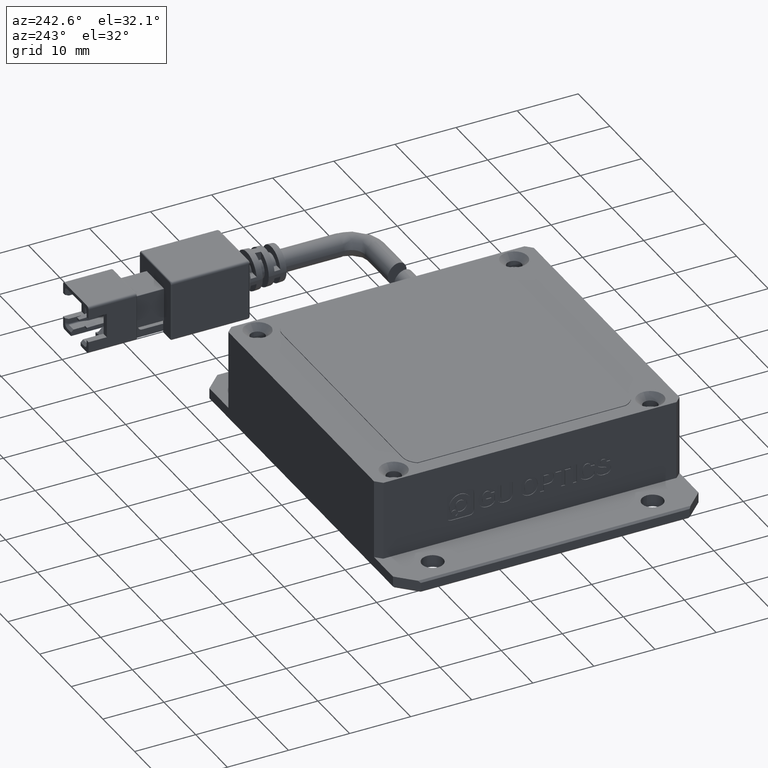
[diagram: clean part render]
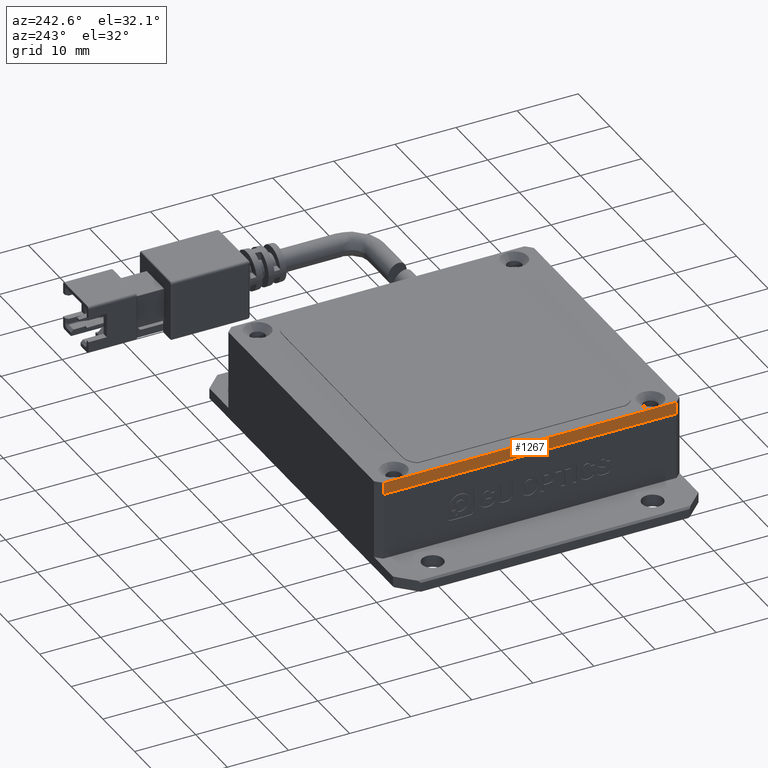
[diagram: same view with one face highlighted and labeled with its STEP entity id]
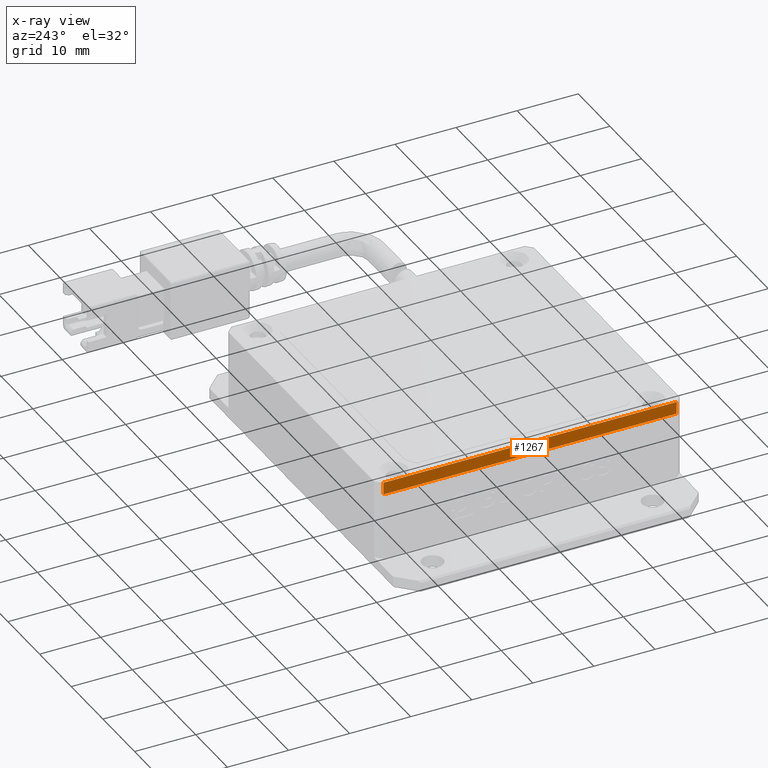
[diagram: x-ray of the same camera — body ghosted, the highlighted face saturated]
A machine part, auxiliary view. The second image highlights one B-rep face of the part: STEP entity #1267.
The next image is the same camera in x-ray: the body ghosted, the highlighted face saturated — about 0% of this face is hidden behind the body in this view.
In plain terms, the highlighted planar face has unit normal (1, 0, 0).
Its self-contained STEP definition (entity closure, byte-faithful):
#197 = EDGE_CURVE ( 'NONE', #13581, #2885, #15318, .T. ) ;
#1267 = ADVANCED_FACE ( 'NONE', ( #3841 ), #11047, .F. ) ;
#1551 = AXIS2_PLACEMENT_3D ( 'NONE', #17390, #10970, #7662 ) ;
#2698 = EDGE_CURVE ( 'NONE', #19916, #5074, #9214, .T. ) ;
#2885 = VERTEX_POINT ( 'NONE', #11280 ) ;
#3023 = VECTOR ( 'NONE', #15498, 1000.000000000000000 ) ;
#3161 = EDGE_LOOP ( 'NONE', ( #18485, #14991, #10008, #9264 ) ) ;
#3841 = FACE_OUTER_BOUND ( 'NONE', #3161, .T. ) ;
#4247 = LINE ( 'NONE', #12191, #3023 ) ;
#5011 = VECTOR ( 'NONE', #19634, 1000.000000000000000 ) ;
#5074 = VERTEX_POINT ( 'NONE', #18151 ) ;
#5577 = CARTESIAN_POINT ( 'NONE',  ( -24.90683466972127400, 26.29095074455902300, 10.99999999998369100 ) ) ;
#7662 = DIRECTION ( 'NONE',  ( 0.0000000000000000000, 0.0000000000000000000, -1.000000000000000000 ) ) ;
#9214 = LINE ( 'NONE', #17004, #5011 ) ;
#9264 = ORIENTED_EDGE ( 'NONE', *, *, #12540, .F. ) ;
#10008 = ORIENTED_EDGE ( 'NONE', *, *, #197, .F. ) ;
#10603 = EDGE_CURVE ( 'NONE', #2885, #19916, #19479, .T. ) ;
#10642 = VECTOR ( 'NONE', #17121, 1000.000000000000000 ) ;
#10970 = DIRECTION ( 'NONE',  ( 1.000000000000000000, 0.0000000000000000000, 0.0000000000000000000 ) ) ;
#11047 = PLANE ( 'NONE',  #1551 ) ;
#11280 = CARTESIAN_POINT ( 'NONE',  ( -24.90683466972127400, -21.70904925544096300, 10.99999999998369100 ) ) ;
#12191 = CARTESIAN_POINT ( 'NONE',  ( -24.90683466972127400, -22.70904925544097400, 12.99999999998369100 ) ) ;
#12219 = CARTESIAN_POINT ( 'NONE',  ( -24.90683466972127400, 27.29095074455903000, 10.99999999998369100 ) ) ;
#12540 = EDGE_CURVE ( 'NONE', #5074, #13581, #4247, .T. ) ;
#13540 = CARTESIAN_POINT ( 'NONE',  ( -24.90683466972127400, -21.70904925544096300, 12.99999999998369100 ) ) ;
#13581 = VERTEX_POINT ( 'NONE', #13540 ) ;
#14058 = DIRECTION ( 'NONE',  ( 0.0000000000000000000, 1.000000000000000000, 0.0000000000000000000 ) ) ;
#14780 = VECTOR ( 'NONE', #14058, 1000.000000000000000 ) ;
#14991 = ORIENTED_EDGE ( 'NONE', *, *, #10603, .F. ) ;
#15318 = LINE ( 'NONE', #20167, #10642 ) ;
#15498 = DIRECTION ( 'NONE',  ( 0.0000000000000000000, -1.000000000000000000, -0.0000000000000000000 ) ) ;
#17004 = CARTESIAN_POINT ( 'NONE',  ( -24.90683466972127400, 26.29095074455902300, 12.99999999998369100 ) ) ;
#17121 = DIRECTION ( 'NONE',  ( 0.0000000000000000000, 0.0000000000000000000, -1.000000000000000000 ) ) ;
#17390 = CARTESIAN_POINT ( 'NONE',  ( -24.90683466972127400, -22.70904925544097400, 12.99999999998369100 ) ) ;
#18151 = CARTESIAN_POINT ( 'NONE',  ( -24.90683466972127400, 26.29095074455902300, 12.99999999998369100 ) ) ;
#18485 = ORIENTED_EDGE ( 'NONE', *, *, #2698, .F. ) ;
#19479 = LINE ( 'NONE', #12219, #14780 ) ;
#19634 = DIRECTION ( 'NONE',  ( -0.0000000000000000000, -0.0000000000000000000, 1.000000000000000000 ) ) ;
#19916 = VERTEX_POINT ( 'NONE', #5577 ) ;
#20167 = CARTESIAN_POINT ( 'NONE',  ( -24.90683466972127400, -21.70904925544096300, 12.99999999998369100 ) ) ;